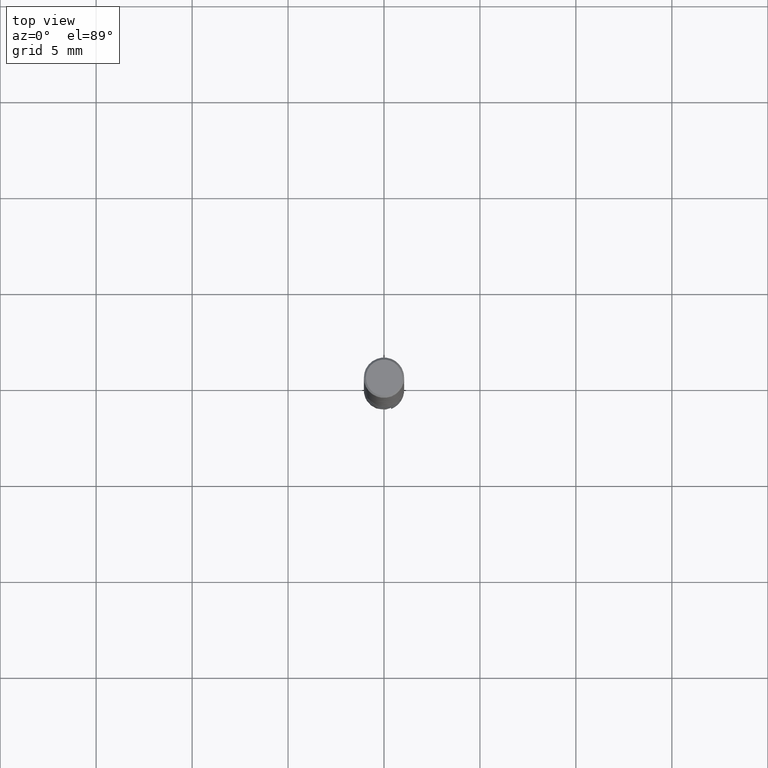
[diagram: clean part render]
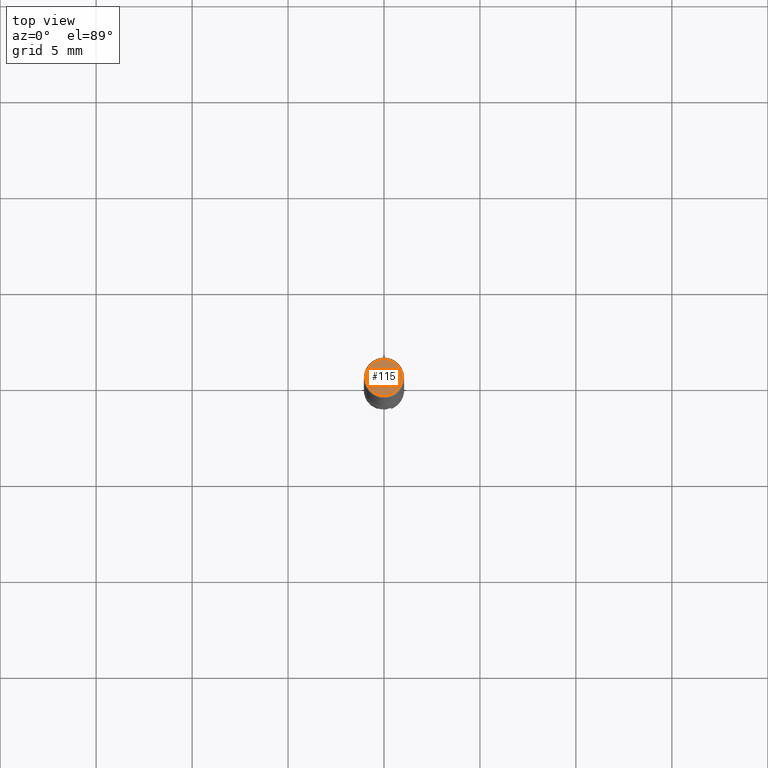
[diagram: same view with one face highlighted and labeled with its STEP entity id]
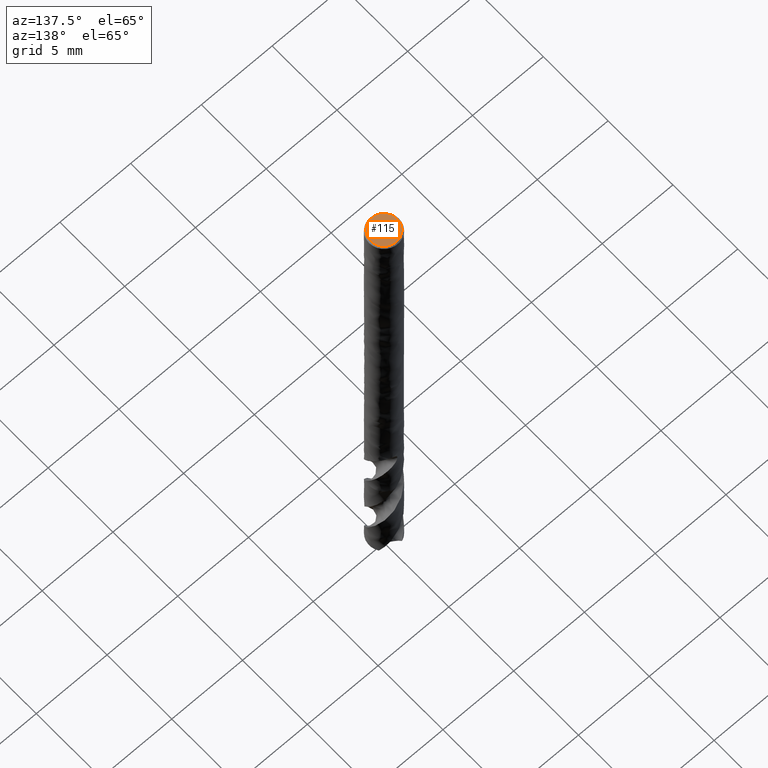
[diagram: same view with one face highlighted and labeled with its STEP entity id]
A machine part, top view. The second image highlights one B-rep face of the part: STEP entity #115.
A second angle (auxiliary view) of the same face is appended — the face is thin or edge-on in the first view.
In plain terms, the highlighted planar face has unit normal (-0, -0, 1).
Its self-contained STEP definition (entity closure, byte-faithful):
#75 = VERTEX_POINT('', #76);
#76 = CARTESIAN_POINT('', (-0.945, 5.78645612597124E-17, 0.));
#82 = EDGE_CURVE('', #75, #75, #83, .T.);
#83 = CIRCLE('', #84, 0.945);
#84 = AXIS2_PLACEMENT_3D('', #85, #86, #87);
#85 = CARTESIAN_POINT('', (-6.74700668366753E-80, 4.13135006948962E-96, 0.));
#86 = DIRECTION('', (3.74939945665464E-33, 6.12323399573677E-17, -1.));
#87 = DIRECTION('', (-1., 6.12323399573677E-17, 0.));
#115 = ADVANCED_FACE('', (#116), #119, .T.);
#116 = FACE_OUTER_BOUND('', #117, .T.);
#117 = EDGE_LOOP('', (#118));
#118 = ORIENTED_EDGE('', *, *, #82, .F.);
#119 = PLANE('', #120);
#120 = AXIS2_PLACEMENT_3D('', #121, #122, #123);
#121 = CARTESIAN_POINT('', (1.47007499808683, -1.47007499808683, 1.09634347770881E-14));
#122 = DIRECTION('', (-7.51897074878413E-15, -6.12323399573675E-17, 1.));
#123 = DIRECTION('', (7.55215227842124E-17, 1., 6.12323399573681E-17));